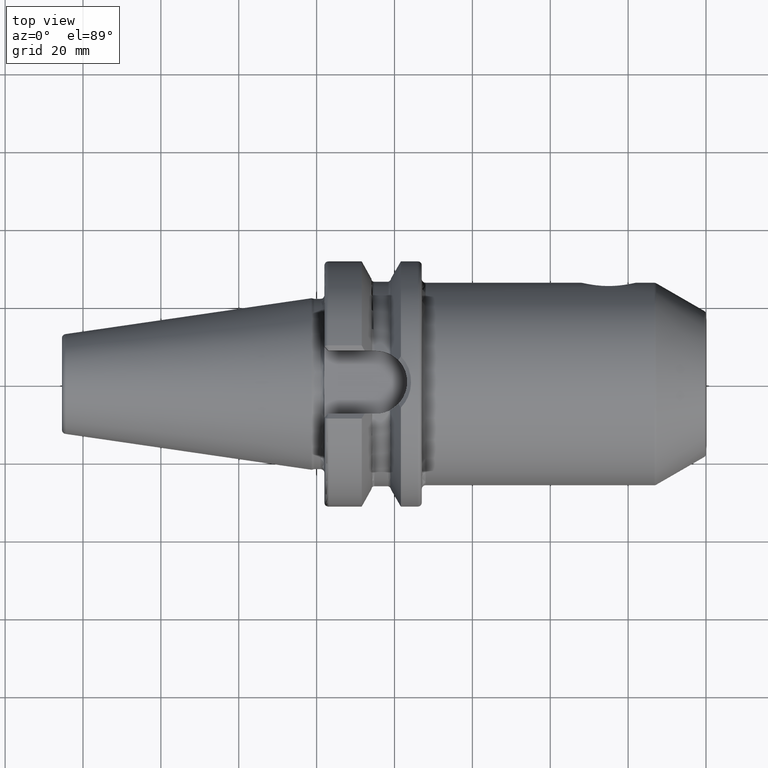
[diagram: clean part render]
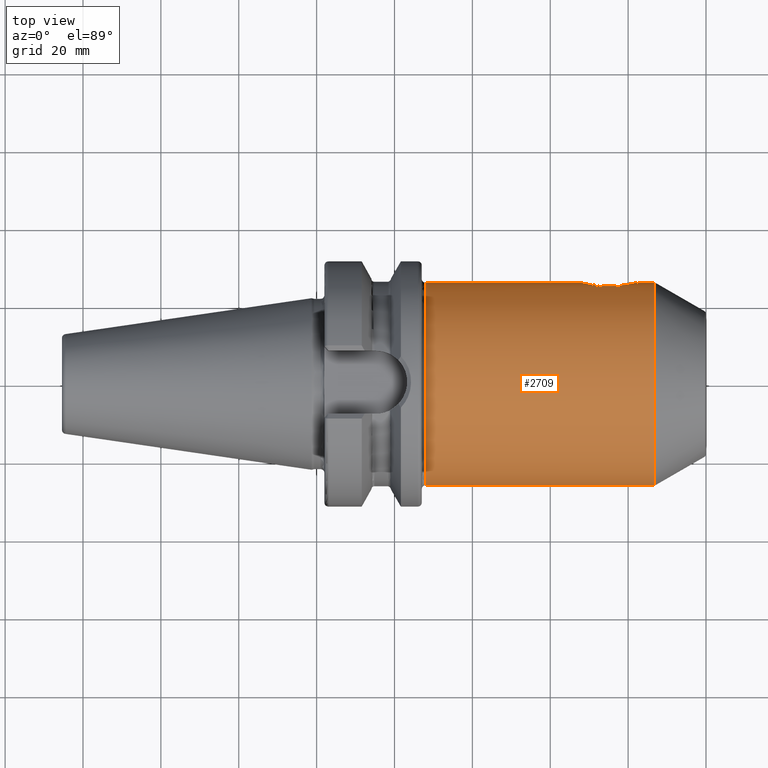
[diagram: same view with one face highlighted and labeled with its STEP entity id]
A machine part, top view. The second image highlights one B-rep face of the part: STEP entity #2709.
In plain terms, the highlighted cylindrical surface (partial cylindrical patch) has radius 26 mm, axis along (1, 0, 0).
Its self-contained STEP definition (entity closure, byte-faithful):
#856=CARTESIAN_POINT('',(8.673205080757E1,0.E0,0.E0));
#857=DIRECTION('',(-1.E0,0.E0,0.E0));
#858=DIRECTION('',(0.E0,-1.E0,0.E0));
#859=AXIS2_PLACEMENT_3D('',#856,#857,#858);
#861=CARTESIAN_POINT('',(2.8E1,0.E0,0.E0));
#862=DIRECTION('',(1.E0,0.E0,0.E0));
#863=DIRECTION('',(0.E0,1.E0,0.E0));
#864=AXIS2_PLACEMENT_3D('',#861,#862,#863);
#866=CARTESIAN_POINT('',(8.2E1,2.6E1,0.E0));
#867=CARTESIAN_POINT('',(8.2E1,2.6E1,3.688184910295E-1));
#868=CARTESIAN_POINT('',(8.194243312708E1,2.598441349028E1,1.095658644746E0));
#869=CARTESIAN_POINT('',(8.168752404669E1,2.591696491142E1,2.162423924233E0));
#870=CARTESIAN_POINT('',(8.127175435360E1,2.581201205216E1,3.171922110733E0));
#871=CARTESIAN_POINT('',(8.070400077141E1,2.567891193958E1,4.106650862025E0));
#872=CARTESIAN_POINT('',(7.999356328931E1,2.552926610525E1,4.946607918072E0));
#873=CARTESIAN_POINT('',(7.915559789058E1,2.537731998827E1,5.669415425596E0));
#874=CARTESIAN_POINT('',(7.820646756057E1,2.523802027545E1,6.255626270622E0));
#875=CARTESIAN_POINT('',(7.717998820511E1,2.512739607992E1,6.682383378512E0));
#876=CARTESIAN_POINT('',(7.611130127111E1,2.505684555765E1,6.939992865281E0));
#877=CARTESIAN_POINT('',(7.502232653010E1,2.503202137535E1,7.028242940565E0));
#878=CARTESIAN_POINT('',(7.393190166516E1,2.505493568294E1,6.946826340391E0));
#879=CARTESIAN_POINT('',(7.286143893374E1,2.512381424966E1,6.695720455503E0));
#880=CARTESIAN_POINT('',(7.183355131475E1,2.523294026948E1,6.275876666031E0));
#881=CARTESIAN_POINT('',(7.088068928904E1,2.537132173664E1,5.696037188109E0));
#882=CARTESIAN_POINT('',(7.003335284391E1,2.552391139940E1,4.974240106150E0));
#883=CARTESIAN_POINT('',(6.931337816822E1,2.567498809408E1,4.131428161185E0));
#884=CARTESIAN_POINT('',(6.873796897545E1,2.580961268730E1,3.191910862843E0));
#885=CARTESIAN_POINT('',(6.831691067862E1,2.591580385622E1,2.177238436852E0));
#886=CARTESIAN_POINT('',(6.805845369068E1,2.598417196797E1,1.103793250476E0));
#887=CARTESIAN_POINT('',(6.8E1,2.6E1,3.716728199093E-1));
#888=CARTESIAN_POINT('',(6.8E1,2.6E1,0.E0));
#905=DIRECTION('',(-1.E0,0.E0,2.890593094241E-13));
#906=VECTOR('',#905,4.732050807569E0);
#907=CARTESIAN_POINT('',(8.673205080757E1,2.6E1,-1.366251297757E-12));
#908=LINE('',#907,#906);
#933=DIRECTION('',(-1.E0,0.E0,2.854019104381E-14));
#934=VECTOR('',#933,4.E1);
#935=CARTESIAN_POINT('',(6.8E1,2.6E1,0.E0));
#936=LINE('',#935,#934);
#942=DIRECTION('',(-1.E0,0.E0,-4.258010354145E-14));
#943=VECTOR('',#942,5.873205080757E1);
#944=CARTESIAN_POINT('',(8.673205080757E1,-2.6E1,1.371226245321E-12));
#945=LINE('',#944,#943);
#1535=VERTEX_POINT('',#866);
#1536=VERTEX_POINT('',#888);
#1543=CARTESIAN_POINT('',(2.8E1,-2.6E1,0.E0));
#1544=CARTESIAN_POINT('',(2.8E1,2.6E1,0.E0));
#1545=VERTEX_POINT('',#1543);
#1546=VERTEX_POINT('',#1544);
#1547=CARTESIAN_POINT('',(8.673205080757E1,2.6E1,0.E0));
#1548=CARTESIAN_POINT('',(8.673205080757E1,-2.6E1,0.E0));
#1549=VERTEX_POINT('',#1547);
#1550=VERTEX_POINT('',#1548);
#2691=CARTESIAN_POINT('',(2.335E1,0.E0,0.E0));
#2692=DIRECTION('',(1.E0,0.E0,0.E0));
#2693=DIRECTION('',(0.E0,-1.E0,0.E0));
#2694=AXIS2_PLACEMENT_3D('',#2691,#2692,#2693);
#2695=CYLINDRICAL_SURFACE('',#2694,2.6E1);
#2697=ORIENTED_EDGE('',*,*,#2696,.F.);
#2699=ORIENTED_EDGE('',*,*,#2698,.T.);
#2700=ORIENTED_EDGE('',*,*,#2683,.F.);
#2702=ORIENTED_EDGE('',*,*,#2701,.F.);
#2704=ORIENTED_EDGE('',*,*,#2703,.F.);
#2706=ORIENTED_EDGE('',*,*,#2705,.F.);
#2707=EDGE_LOOP('',(#2697,#2699,#2700,#2702,#2704,#2706));
#2708=FACE_OUTER_BOUND('',#2707,.F.);
#2709=ADVANCED_FACE('',(#2708),#2695,.T.);
#860=CIRCLE('',#859,2.6E1);
#865=CIRCLE('',#864,2.6E1);
#889=B_SPLINE_CURVE_WITH_KNOTS('',3,(#866,#867,#868,#869,#870,#871,#872,#873,
#874,#875,#876,#877,#878,#879,#880,#881,#882,#883,#884,#885,#886,#887,#888),
.UNSPECIFIED.,.F.,.F.,(4,1,1,1,1,1,1,1,1,1,1,1,1,1,1,1,1,1,1,1,4),(0.E0,5.E-2,
1.E-1,1.5E-1,2.E-1,2.5E-1,3.E-1,3.5E-1,4.E-1,4.5E-1,5.E-1,5.5E-1,6.E-1,6.5E-1,
7.E-1,7.5E-1,8.E-1,8.5E-1,9.E-1,9.5E-1,1.E0),.UNSPECIFIED.);
#2683=EDGE_CURVE('',#1546,#1545,#865,.T.);
#2696=EDGE_CURVE('',#1550,#1549,#860,.T.);
#2698=EDGE_CURVE('',#1550,#1545,#945,.T.);
#2701=EDGE_CURVE('',#1536,#1546,#936,.T.);
#2703=EDGE_CURVE('',#1535,#1536,#889,.T.);
#2705=EDGE_CURVE('',#1549,#1535,#908,.T.);